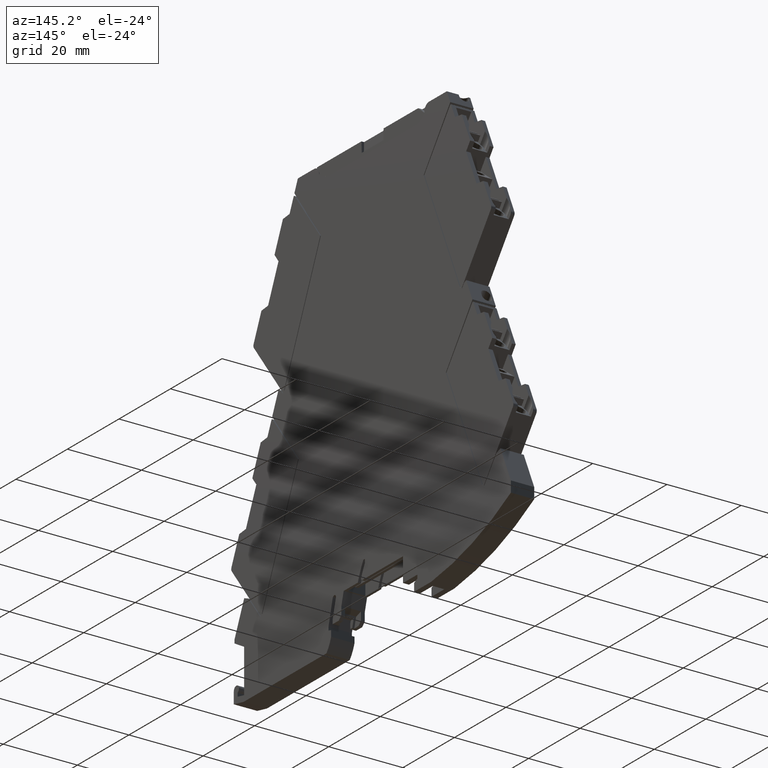
[diagram: clean part render]
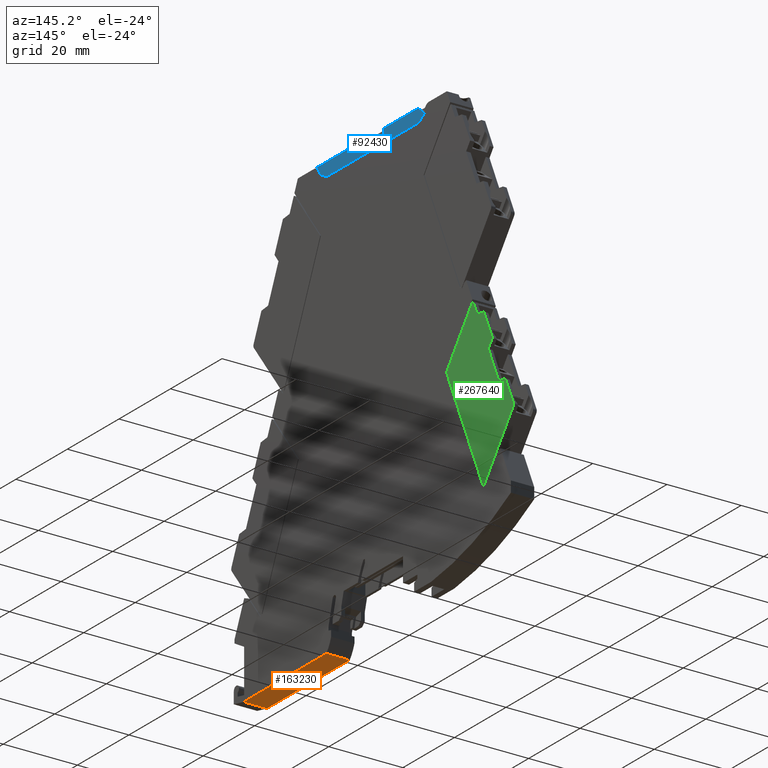
[diagram: same view with three faces highlighted in distinct colors, each labeled with its STEP entity id]
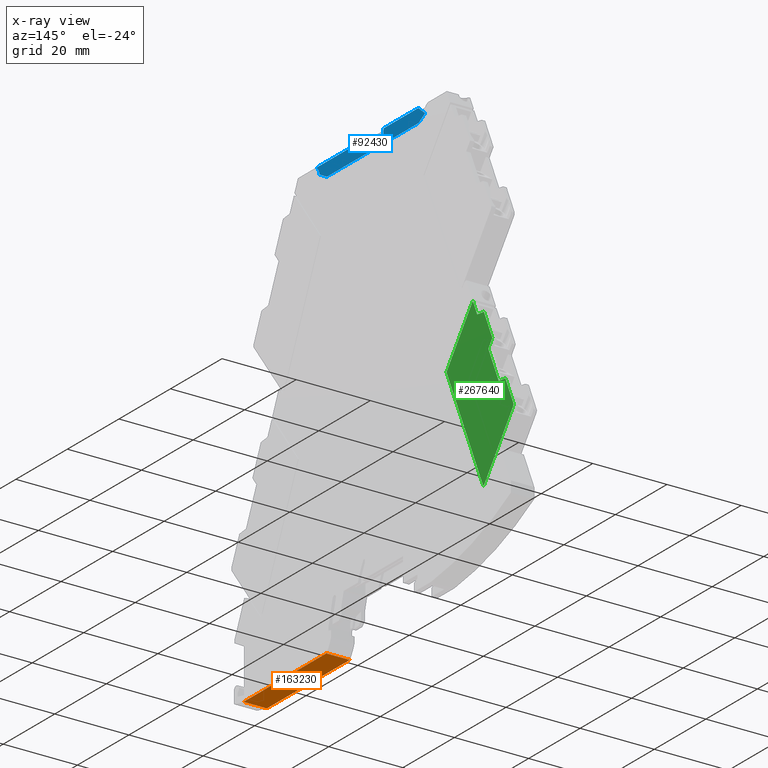
[diagram: x-ray of the same camera — body ghosted, the three highlighted faces saturated]
A machine part, auxiliary view with three faces highlighted in distinct colors.
The next image is the same camera in x-ray (body ghosted, the three faces saturated) — at least one of them is partly hidden behind the body in this view.
Their STEP definitions:

[orange] entity #163230 — the highlighted planar face has unit normal (0, -0, 1).
#2390=CARTESIAN_POINT('',(-33.9492764080469,-8.99999999999157,
-14.6999999999721));
#2400=VERTEX_POINT('',#2390);
#2430=CARTESIAN_POINT('',(0.943563592012242,-8.99999999999158,
-14.6999999996625));
#2440=DIRECTION('',(-1.,-5.38540795371444E-26,-8.87306795638251E-12));
#2450=VECTOR('',#2440,1.);
#2460=LINE('',#2430,#2450);
#2470=CARTESIAN_POINT('',(-1.8164198256342,-8.99999999999158,
-14.6999999996869));
#2480=VERTEX_POINT('',#2470);
#2490=EDGE_CURVE('',#2480,#2400,#2460,.T.);
#11880=CARTESIAN_POINT('',(-1.81641982569014,-8.99999999999154,
-8.39999999995973));
#11890=VERTEX_POINT('',#11880);
#11920=CARTESIAN_POINT('',(16.0007235920431,-8.99999999999153,
-8.39999999980153));
#11930=DIRECTION('',(1.,5.38934856045505E-26,8.87912561076062E-12));
#11940=VECTOR('',#11930,1.);
#11950=LINE('',#11920,#11940);
#11960=CARTESIAN_POINT('',(-33.9492764081028,-8.99999999999153,
-8.40000000024504));
#11970=VERTEX_POINT('',#11960);
#11980=EDGE_CURVE('',#11970,#11890,#11950,.T.);
#102790=CARTESIAN_POINT('',(-33.9492764081774,-8.99999999999148,
3.2450903075798E-11));
#102800=DIRECTION('',(8.87912561076062E-12,-6.5458857184369E-15,-1.));
#102810=VECTOR('',#102800,1.);
#102820=LINE('',#102790,#102810);
#102830=EDGE_CURVE('',#11970,#2400,#102820,.T.);
#103030=CARTESIAN_POINT('',(-1.81641982569014,-8.99999999999154,
-8.39999999995973));
#103040=DIRECTION('',(-8.87912561076062E-12,6.5458857184369E-15,1.));
#103050=VECTOR('',#103040,1.);
#103060=LINE('',#103030,#103050);
#103070=EDGE_CURVE('',#2480,#11890,#103060,.T.);
#163120=CARTESIAN_POINT('',(-2.29927640810329,-8.99999999999154,
-8.39999999996402));
#163130=DIRECTION('',(4.22825592313476E-27,1.,-6.5458857184369E-15));
#163140=DIRECTION('',(1.,5.38934856045505E-26,8.87912561076062E-12));
#163150=AXIS2_PLACEMENT_3D('',#163120,#163130,#163140);
#163160=PLANE('',#163150);
#163170=ORIENTED_EDGE('',*,*,#11980,.F.);
#163180=ORIENTED_EDGE('',*,*,#103070,.T.);
#163190=ORIENTED_EDGE('',*,*,#2490,.F.);
#163200=ORIENTED_EDGE('',*,*,#102830,.T.);
#163210=EDGE_LOOP('',(#163200,#163190,#163180,#163170));
#163220=FACE_OUTER_BOUND('',#163210,.T.);
#163230=ADVANCED_FACE('',(#163220),#163160,.F.);

[blue] entity #92430 — the highlighted planar face has unit normal (-1, 0, 0.0087).
#15140=CARTESIAN_POINT('',(33.7493922404676,110.200000000158,
-8.45000000282515));
#15150=VERTEX_POINT('',#15140);
#15180=CARTESIAN_POINT('',(1.15118559195555,110.200000000158,
-8.45000000527106));
#15190=DIRECTION('',(1.,1.11022301456429E-16,7.50321528832784E-11));
#15200=VECTOR('',#15190,1.);
#15210=LINE('',#15180,#15200);
#15220=CARTESIAN_POINT('',(20.298501746368,110.200000000158,
-8.4500000038344));
#15230=VERTEX_POINT('',#15220);
#15240=EDGE_CURVE('',#15230,#15150,#15210,.T.);
#15460=CARTESIAN_POINT('',(11.7029454372215,110.200000000158,
-8.45000000447934));
#15470=VERTEX_POINT('',#15460);
#15500=CARTESIAN_POINT('',(-5.54571119067333,110.200000000158,
-8.45000000577354));
#15510=VERTEX_POINT('',#15500);
#15520=EDGE_CURVE('',#15510,#15470,#15210,.T.);
#27170=CARTESIAN_POINT('',(36.2007235915734,108.143088767552,
-8.46795039494979));
#27180=VERTEX_POINT('',#27170);
#27210=CARTESIAN_POINT('',(1.15118559195345,137.553143175956,
-8.21129274216104));
#27220=DIRECTION('',(-0.766032390942262,0.642777496709237,
0.00560943415057882));
#27230=VECTOR('',#27220,1.);
#27240=LINE('',#27210,#27230);
#27250=EDGE_CURVE('',#27180,#15150,#27240,.T.);
#27450=CARTESIAN_POINT('',(36.2007235915735,107.906773132614,
-8.47001269023864));
#27460=VERTEX_POINT('',#27450);
#27490=CARTESIAN_POINT('',(36.2007235916442,-1.89731703905054E-13,
-9.41170082896661));
#27500=DIRECTION('',(-6.549004398366E-13,0.999961923064505,
0.00872653546010603));
#27510=VECTOR('',#27500,1.);
#27520=LINE('',#27490,#27510);
#27530=EDGE_CURVE('',#27460,#27180,#27520,.T.);
#91500=CARTESIAN_POINT('',(-5.54571075981675,109.926667139509,
-8.45238534550083));
#91510=VERTEX_POINT('',#91500);
#91540=CARTESIAN_POINT('',(-6.49927640809783,108.400000000144,
-8.46570836779969));
#91550=DIRECTION('',(7.5029294919993E-11,0.00872653546010603,
-0.999961923064505));
#91560=DIRECTION('',(-8.8648247408234E-9,-0.999961923064505,
-0.00872653546010603));
#91570=AXIS2_PLACEMENT_3D('',#91540,#91550,#91560);
#91580=ELLIPSE('',#91570,1.80006854109374,1.8);
#91590=CARTESIAN_POINT('',(-4.69927649942279,108.400573384668,
-8.46570336381372));
#91600=VERTEX_POINT('',#91590);
#91610=EDGE_CURVE('',#91510,#91600,#91580,.T.);
#91730=CARTESIAN_POINT('',(16.0007235916724,110.200000000158,
-8.45000000415687));
#91740=DIRECTION('',(7.5029294919993E-11,0.00872653546010603,
-0.999961923064505));
#91750=DIRECTION('',(6.54881760858098E-13,-0.999961923064505,
-0.00872653546010603));
#91760=AXIS2_PLACEMENT_3D('',#91730,#91740,#91750);
#91770=PLANE('',#91760);
#91780=ORIENTED_EDGE('',*,*,#91610,.T.);
#91790=CARTESIAN_POINT('',(-5.54553748161092,-1.94366364138968E-13,
-9.41170083209892));
#91800=DIRECTION('',(-1.57624726039481E-6,0.999961923063263,
0.00872653546009507));
#91810=VECTOR('',#91800,1.);
#91820=LINE('',#91790,#91810);
#91830=EDGE_CURVE('',#91510,#15510,#91820,.T.);
#91840=ORIENTED_EDGE('',*,*,#91830,.F.);
#91850=ORIENTED_EDGE('',*,*,#15520,.F.);
#91860=CARTESIAN_POINT('',(15.5512142352885,-1.92024207650379E-13,
-9.41170083051599));
#91870=DIRECTION('',(0.034898169455692,-0.999352819624897,
-0.00872121989232249));
#91880=VECTOR('',#91870,1.);
#91890=LINE('',#91860,#91880);
#91900=CARTESIAN_POINT('',(11.8007235918002,107.400000000159,
-8.47443523417896));
#91910=VERTEX_POINT('',#91900);
#91920=EDGE_CURVE('',#15470,#91910,#91890,.T.);
#91930=ORIENTED_EDGE('',*,*,#91920,.F.);
#91940=CARTESIAN_POINT('',(1.15118559195577,107.400000000159,
-8.47443523497801));
#91950=DIRECTION('',(1.,1.11022301469355E-16,7.50321528832784E-11));
#91960=VECTOR('',#91950,1.);
#91970=LINE('',#91940,#91960);
#91980=CARTESIAN_POINT('',(20.200723591793,107.400000000159,
-8.47443523354868));
#91990=VERTEX_POINT('',#91980);
#92000=EDGE_CURVE('',#91910,#91990,#91970,.T.);
#92010=ORIENTED_EDGE('',*,*,#92000,.F.);
#92020=CARTESIAN_POINT('',(16.4502329484454,-1.919243988011E-13,
-9.41170083044853));
#92030=DIRECTION('',(0.034898169454383,0.999352819624897,
0.00872121989755946));
#92040=VECTOR('',#92030,1.);
#92050=LINE('',#92020,#92040);
#92060=EDGE_CURVE('',#91990,#15230,#92050,.T.);
#92070=ORIENTED_EDGE('',*,*,#92060,.F.);
#92080=ORIENTED_EDGE('',*,*,#15240,.F.);
#92090=ORIENTED_EDGE('',*,*,#27250,.T.);
#92100=ORIENTED_EDGE('',*,*,#27530,.T.);
#92110=CARTESIAN_POINT('',(1.15118559195728,87.6709129337055,
-8.64660836868424));
#92120=DIRECTION('',(0.866017159534195,0.499995240176408,
0.0043633924028714));
#92130=VECTOR('',#92120,1.);
#92140=LINE('',#92110,#92130);
#92150=CARTESIAN_POINT('',(33.8507235915415,106.55000000001,
-8.48185307011541));
#92160=VERTEX_POINT('',#92150);
#92170=EDGE_CURVE('',#92160,#27460,#92140,.T.);
#92180=ORIENTED_EDGE('',*,*,#92170,.T.);
#92190=CARTESIAN_POINT('',(1.15118559195583,106.550000000109,
-8.48185307256806));
#92200=DIRECTION('',(1.,-3.03140845380271E-12,7.50056972137214E-11));
#92210=VECTOR('',#92200,1.);
#92220=LINE('',#92190,#92210);
#92230=CARTESIAN_POINT('',(-1.84927640843027,106.550000000118,
-8.48185307279311));
#92240=VERTEX_POINT('',#92230);
#92250=EDGE_CURVE('',#92240,#92160,#92220,.T.);
#92260=ORIENTED_EDGE('',*,*,#92250,.T.);
#92270=CARTESIAN_POINT('',(1.15118559195597,104.81768245649,
-8.49697077867654));
#92280=DIRECTION('',(0.866017159531674,-0.499995240181908,
-0.00436339227296112));
#92290=VECTOR('',#92280,1.);
#92300=LINE('',#92270,#92290);
#92310=CARTESIAN_POINT('',(-4.69927640817577,108.195448267173,
-8.46749346358681));
#92320=VERTEX_POINT('',#92310);
#92330=EDGE_CURVE('',#92320,#92240,#92300,.T.);
#92340=ORIENTED_EDGE('',*,*,#92330,.T.);
#92350=CARTESIAN_POINT('',(-4.69927640849537,-1.94272412430666E-13,
-9.41170083203543));
#92360=DIRECTION('',(2.95386909336662E-12,0.999961923064505,
0.00872653546010603));
#92370=VECTOR('',#92360,1.);
#92380=LINE('',#92350,#92370);
#92390=EDGE_CURVE('',#92320,#91600,#92380,.T.);
#92400=ORIENTED_EDGE('',*,*,#92390,.F.);
#92410=EDGE_LOOP('',(#92400,#92340,#92260,#92180,#92100,#92090,#92080,
#92070,#92010,#91930,#91850,#91840,#91780));
#92420=FACE_OUTER_BOUND('',#92410,.T.);
#92430=ADVANCED_FACE('',(#92420),#91770,.F.);

[green] entity #267640 — the highlighted planar face has unit normal (1, -0, 0).
#208470=CARTESIAN_POINT('',(-127.834970243558,23.5417332228139,
-9.55000000252271));
#208480=VERTEX_POINT('',#208470);
#208510=CARTESIAN_POINT('',(-2.8421709430404E-14,22.4261353561558,
-9.55000001550444));
#208520=DIRECTION('',(-0.999961923133656,0.00872652753623981,
1.01546791808627E-10));
#208530=VECTOR('',#208520,1.);
#208540=LINE('',#208510,#208530);
#208550=CARTESIAN_POINT('',(-144.491342192195,23.6870910457856,
-9.55000000083125));
#208560=VERTEX_POINT('',#208550);
#208570=EDGE_CURVE('',#208480,#208560,#208540,.T.);
#208800=CARTESIAN_POINT('',(-142.601348859071,-7.12310506249165,
-9.55000000094918));
#208810=VERTEX_POINT('',#208800);
#208970=CARTESIAN_POINT('',(-143.476039707181,-7.62296120132255,
-9.55000000085919));
#208980=VERTEX_POINT('',#208970);
#209010=CARTESIAN_POINT('',(-143.467313179645,-6.6229992781889,
-9.55000000086248));
#209020=DIRECTION('',(1.00774222510954E-10,1.12576479819879E-12,1.));
#209030=DIRECTION('',(0.999961923133654,-0.00872652753639959,
-1.00760561326841E-10));
#209040=AXIS2_PLACEMENT_3D('',#209010,#209020,#209030);
#209050=CIRCLE('',#209040,1.);
#209060=EDGE_CURVE('',#208980,#208810,#209050,.T.);
#209800=CARTESIAN_POINT('',(-162.213817258033,-7.45943924342349,
-9.54999999895636));
#209810=VERTEX_POINT('',#209800);
#209840=CARTESIAN_POINT('',(-2.8421709430404E-14,-8.87505648875294,
-9.55000001542928));
#209850=DIRECTION('',(0.999961923133656,-0.00872652753623987,
-1.01546791808627E-10));
#209860=VECTOR('',#209850,1.);
#209870=LINE('',#209840,#209860);
#209880=EDGE_CURVE('',#209810,#208980,#209870,.T.);
#210020=CARTESIAN_POINT('',(-127.66352268495,23.2417196813266,
-9.5500000025394));
#210030=VERTEX_POINT('',#210020);
#210060=CARTESIAN_POINT('',(-127.836715549065,23.3417408381872,
-9.55000000252205));
#210070=DIRECTION('',(-1.00774222510954E-10,-1.12576479819879E-12,-1.));
#210080=DIRECTION('',(0.999961923133654,-0.00872652753639959,
-1.00760561326841E-10));
#210090=AXIS2_PLACEMENT_3D('',#210060,#210070,#210080);
#210100=CIRCLE('',#210090,0.2);
#210110=EDGE_CURVE('',#208480,#210030,#210100,.T.);
#216180=CARTESIAN_POINT('',(-138.794183140722,-0.530760447698506,
-9.55000000135176));
#216190=VERTEX_POINT('',#216180);
#216220=CARTESIAN_POINT('',(-139.096507752099,-1.77635683940025E-15,
-9.55000000132233));
#216230=DIRECTION('',(-0.494944961437488,0.86892432647938,
4.81859274703567E-11));
#216240=VECTOR('',#216230,1.);
#216250=LINE('',#216220,#216240);
#216260=CARTESIAN_POINT('',(-140.084358501353,1.73426868406695,
-9.55000000122615));
#216270=VERTEX_POINT('',#216260);
#216280=EDGE_CURVE('',#216190,#216270,#216250,.T.);
#216450=CARTESIAN_POINT('',(-138.487662001609,-1.77635683940025E-15,
-9.55000000138417));
#216460=DIRECTION('',(-0.500105784302748,-0.865964320573852,
5.28759258600076E-11));
#216470=VECTOR('',#216460,1.);
#216480=LINE('',#216450,#216470);
#216490=CARTESIAN_POINT('',(-128.335752732167,17.5786633327923,
-9.55000000245753));
#216500=VERTEX_POINT('',#216490);
#216510=CARTESIAN_POINT('',(-132.434530595542,10.4813741210917,
-9.55000000202417));
#216520=VERTEX_POINT('',#216510);
#216530=EDGE_CURVE('',#216500,#216520,#216480,.T.);
#217030=CARTESIAN_POINT('',(-118.322831491231,-1.77635683940025E-15,
-9.55000000343234));
#217040=DIRECTION('',(-0.494944961437488,0.86892432647938,
4.81859274703567E-11));
#217050=VECTOR('',#217040,1.);
#217060=LINE('',#217030,#217050);
#217070=CARTESIAN_POINT('',(-129.625928092798,19.8436924645577,
-9.55000000233192));
#217080=VERTEX_POINT('',#217070);
#217090=EDGE_CURVE('',#216500,#217080,#217060,.T.);
#217330=CARTESIAN_POINT('',(-2.8421709430404E-14,9.32563653623511,
-9.55000001547298));
#217340=DIRECTION('',(0.999961923133656,-0.00872652753623987,
-1.01546791808627E-10));
#217350=VECTOR('',#217340,1.);
#217360=LINE('',#217330,#217350);
#217370=CARTESIAN_POINT('',(-135.019760828803,10.5039350629597,
-9.55000000176163));
#217380=VERTEX_POINT('',#217370);
#217390=EDGE_CURVE('',#217380,#216520,#217360,.T.);
#217900=CARTESIAN_POINT('',(-141.08592147552,-1.77635683940025E-15,
-9.55000000112026));
#217910=DIRECTION('',(-0.500105784302748,-0.865964320573852,
5.28759258600076E-11));
#217920=VECTOR('',#217910,1.);
#217930=LINE('',#217900,#217920);
#217940=EDGE_CURVE('',#217380,#216270,#217930,.T.);
#230310=CARTESIAN_POINT('',(-141.08592147552,-1.77635683940025E-15,
-9.55000000112026));
#230320=DIRECTION('',(-0.500105784302748,-0.865964320573852,
5.28759258600076E-11));
#230330=VECTOR('',#230320,1.);
#230340=LINE('',#230310,#230330);
#230350=EDGE_CURVE('',#210030,#217080,#230340,.T.);
#239780=CARTESIAN_POINT('',(-158.170948803993,-1.77635683940025E-15,
-9.54999999938491));
#239790=DIRECTION('',(0.500105784302748,0.865964320573852,
-5.28758981044319E-11));
#239800=VECTOR('',#239790,1.);
#239810=LINE('',#239780,#239800);
#239820=CARTESIAN_POINT('',(-162.209750519817,-6.99343677588575,
-9.54999999895789));
#239830=VERTEX_POINT('',#239820);
#239840=EDGE_CURVE('',#239830,#208560,#239810,.T.);
#254980=CARTESIAN_POINT('',(-162.148719777324,-1.77635683940025E-15,
-9.54999999898088));
#254990=DIRECTION('',(0.00872652754141354,0.999961923133611,
-3.28746491834453E-12));
#255000=VECTOR('',#254990,1.);
#255010=LINE('',#254980,#255000);
#255020=EDGE_CURVE('',#209810,#239830,#255010,.T.);
#267390=CARTESIAN_POINT('',(-146.763942497471,10.8898733385578,
-9.55000000056969));
#267400=DIRECTION('',(1.01571614201302E-10,2.40118788303072E-12,1.));
#267410=DIRECTION('',(-1.08412129273731E-9,1.,-2.40118777291478E-12));
#267420=AXIS2_PLACEMENT_3D('',#267390,#267400,#267410);
#267430=PLANE('',#267420);
#267440=ORIENTED_EDGE('',*,*,#210110,.F.);
#267450=ORIENTED_EDGE('',*,*,#230350,.F.);
#267460=ORIENTED_EDGE('',*,*,#217090,.T.);
#267470=ORIENTED_EDGE('',*,*,#216530,.F.);
#267480=ORIENTED_EDGE('',*,*,#217390,.T.);
#267490=ORIENTED_EDGE('',*,*,#217940,.F.);
#267500=ORIENTED_EDGE('',*,*,#216280,.T.);
#267510=CARTESIAN_POINT('',(-138.487662001609,-1.77635683940025E-15,
-9.55000000138417));
#267520=DIRECTION('',(-0.500105784302748,-0.865964320573852,
5.28759258600076E-11));
#267530=VECTOR('',#267520,1.);
#267540=LINE('',#267510,#267530);
#267550=EDGE_CURVE('',#216190,#208810,#267540,.T.);
#267560=ORIENTED_EDGE('',*,*,#267550,.F.);
#267570=ORIENTED_EDGE('',*,*,#209060,.T.);
#267580=ORIENTED_EDGE('',*,*,#209880,.T.);
#267590=ORIENTED_EDGE('',*,*,#255020,.F.);
#267600=ORIENTED_EDGE('',*,*,#239840,.F.);
#267610=ORIENTED_EDGE('',*,*,#208570,.T.);
#267620=EDGE_LOOP('',(#267610,#267600,#267590,#267580,#267570,#267560,
#267500,#267490,#267480,#267470,#267460,#267450,#267440));
#267630=FACE_OUTER_BOUND('',#267620,.T.);
#267640=ADVANCED_FACE('',(#267630),#267430,.T.);